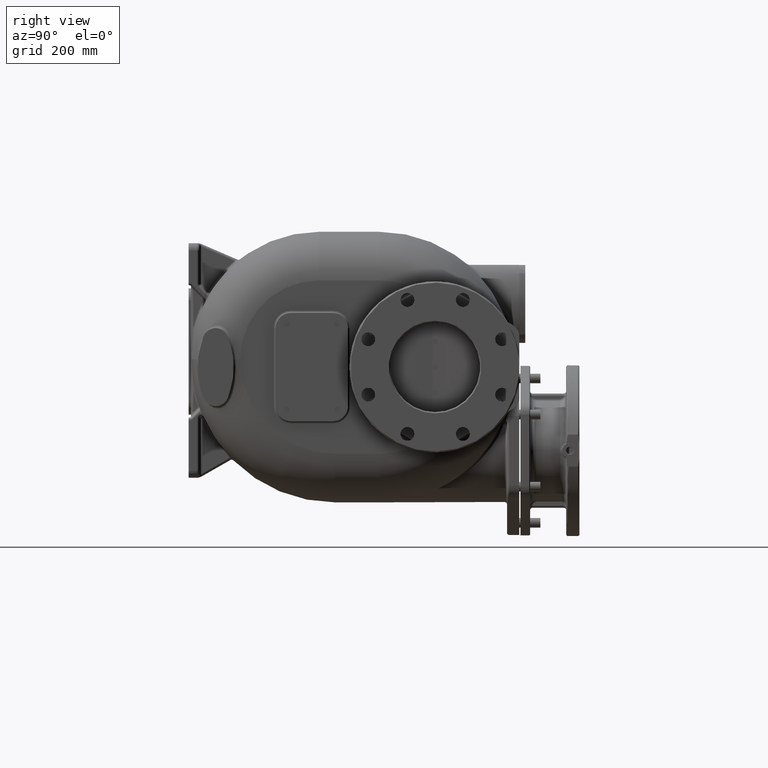
[diagram: clean part render]
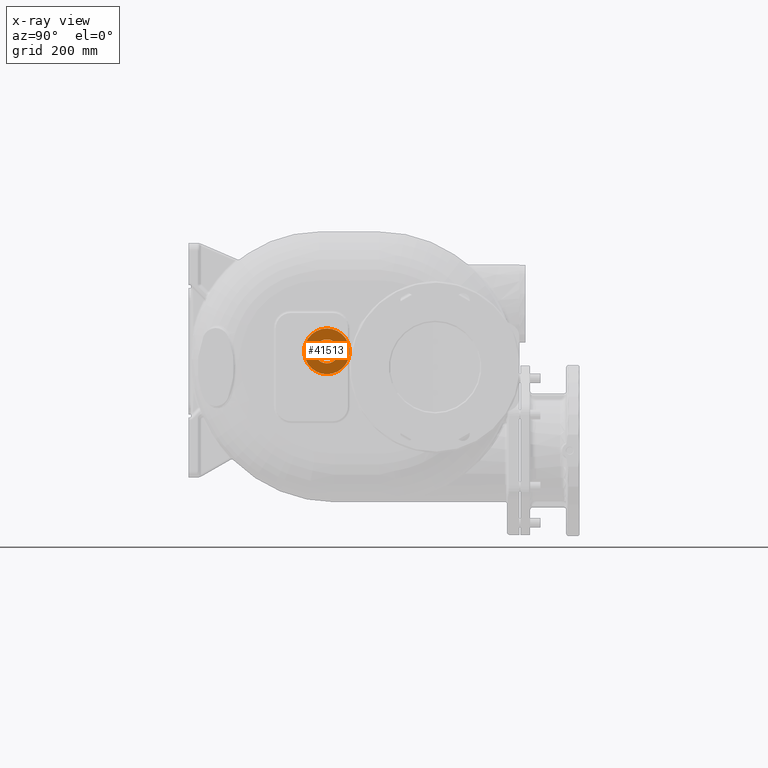
[diagram: x-ray — body ghosted, one internal face saturated and labeled with its STEP entity id]
A machine part, right view, then the same camera in x-ray: the body is ghosted and one INTERNAL B-rep face — a face not visible from any outside direction — is saturated and labeled: STEP entity #41513.
In plain terms, the highlighted planar face has unit normal (-1, 0, 0).
Its self-contained STEP definition (entity closure, byte-faithful):
#13934=CARTESIAN_POINT('',(-4.885E2,2.3E2,0.E0));
#13935=DIRECTION('',(1.E0,0.E0,0.E0));
#13936=DIRECTION('',(0.E0,0.E0,-1.E0));
#13937=AXIS2_PLACEMENT_3D('',#13934,#13935,#13936);
#13939=CARTESIAN_POINT('',(-4.885E2,2.3E2,0.E0));
#13940=DIRECTION('',(1.E0,0.E0,0.E0));
#13941=DIRECTION('',(0.E0,0.E0,1.E0));
#13942=AXIS2_PLACEMENT_3D('',#13939,#13940,#13941);
#13944=CARTESIAN_POINT('',(-4.885E2,2.3E2,0.E0));
#13945=DIRECTION('',(1.E0,0.E0,0.E0));
#13946=DIRECTION('',(0.E0,0.E0,-1.E0));
#13947=AXIS2_PLACEMENT_3D('',#13944,#13945,#13946);
#13949=CARTESIAN_POINT('',(-4.885E2,2.3E2,0.E0));
#13950=DIRECTION('',(1.E0,0.E0,0.E0));
#13951=DIRECTION('',(0.E0,0.E0,1.E0));
#13952=AXIS2_PLACEMENT_3D('',#13949,#13950,#13951);
#24041=CARTESIAN_POINT('',(-4.885E2,2.3E2,-2.E1));
#24042=CARTESIAN_POINT('',(-4.885E2,2.3E2,2.E1));
#24043=VERTEX_POINT('',#24041);
#24044=VERTEX_POINT('',#24042);
#24105=CARTESIAN_POINT('',(-4.885E2,2.3E2,-3.8E1));
#24106=CARTESIAN_POINT('',(-4.885E2,2.3E2,3.8E1));
#24107=VERTEX_POINT('',#24105);
#24108=VERTEX_POINT('',#24106);
#41497=CARTESIAN_POINT('',(-4.885E2,2.3E2,0.E0));
#41498=DIRECTION('',(-1.E0,0.E0,0.E0));
#41499=DIRECTION('',(0.E0,-1.E0,0.E0));
#41500=AXIS2_PLACEMENT_3D('',#41497,#41498,#41499);
#41501=PLANE('',#41500);
#41503=ORIENTED_EDGE('',*,*,#41502,.T.);
#41504=ORIENTED_EDGE('',*,*,#41487,.T.);
#41505=EDGE_LOOP('',(#41503,#41504));
#41506=FACE_OUTER_BOUND('',#41505,.F.);
#41508=ORIENTED_EDGE('',*,*,#41507,.F.);
#41510=ORIENTED_EDGE('',*,*,#41509,.F.);
#41511=EDGE_LOOP('',(#41508,#41510));
#41512=FACE_BOUND('',#41511,.F.);
#41513=ADVANCED_FACE('',(#41506,#41512),#41501,.T.);
#13938=CIRCLE('',#13937,3.8E1);
#13943=CIRCLE('',#13942,3.8E1);
#13948=CIRCLE('',#13947,2.E1);
#13953=CIRCLE('',#13952,2.E1);
#41487=EDGE_CURVE('',#24108,#24107,#13943,.T.);
#41502=EDGE_CURVE('',#24107,#24108,#13938,.T.);
#41507=EDGE_CURVE('',#24043,#24044,#13948,.T.);
#41509=EDGE_CURVE('',#24044,#24043,#13953,.T.);